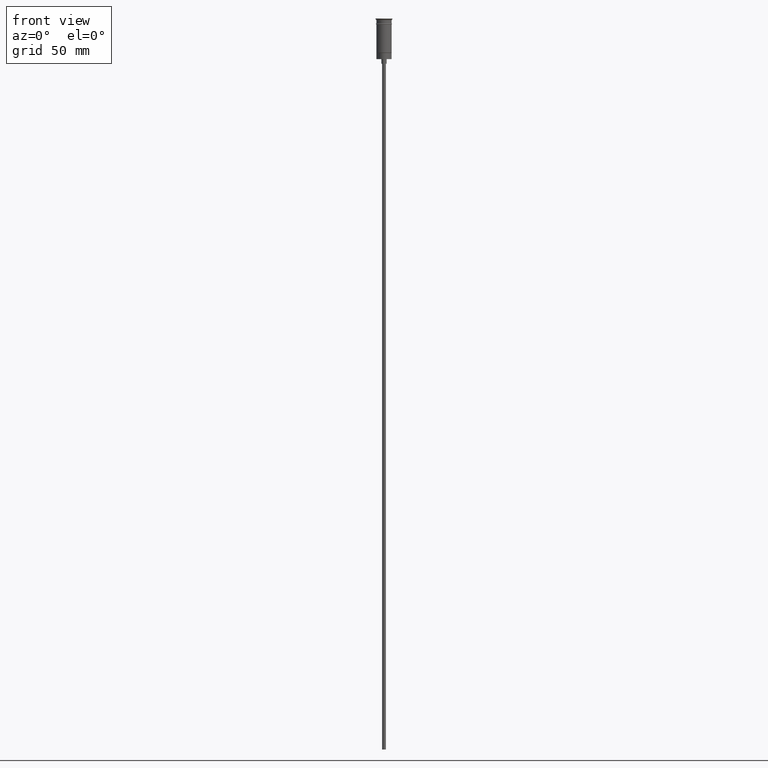
[diagram: clean part render]
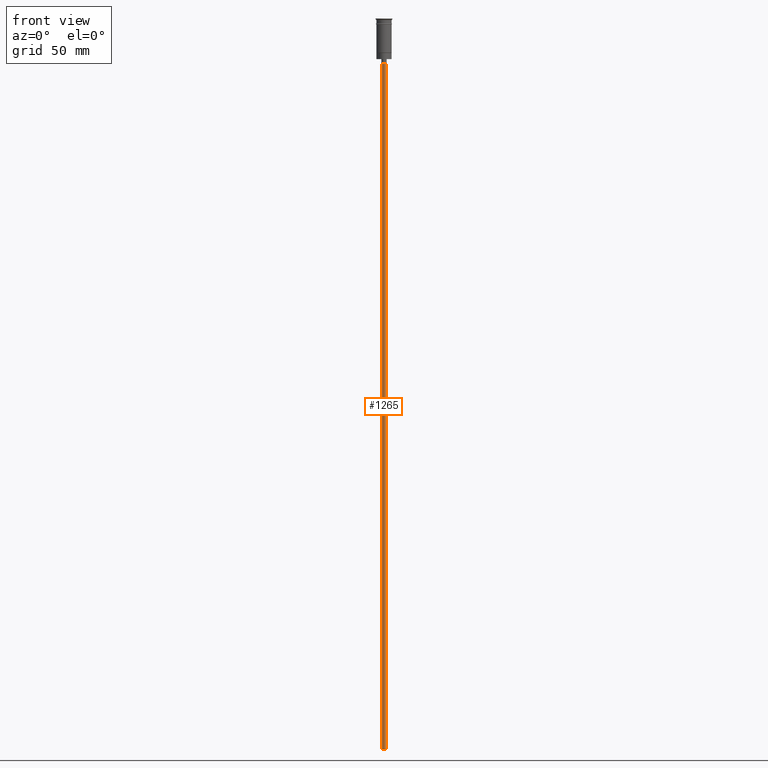
[diagram: same view with one face highlighted and labeled with its STEP entity id]
A machine part, front view. The second image highlights one B-rep face of the part: STEP entity #1265.
In plain terms, the highlighted cylindrical surface (edge-blend (fillet) strip) has radius 1.25 mm, axis along (-0, -0, 1).
Its self-contained STEP definition (entity closure, byte-faithful):
#26 = VECTOR ( 'NONE', #1151, 1000.000000000000000 ) ;
#63 = CARTESIAN_POINT ( 'NONE',  ( 1.250000000000000000, 0.000000000000000000, -476.5000000000000568 ) ) ;
#66 = CARTESIAN_POINT ( 'NONE',  ( 0.000000000000000000, 0.000000000000000000, -476.5000000000000568 ) ) ;
#154 = CARTESIAN_POINT ( 'NONE',  ( 1.250000000000000000, 0.000000000000000000, -476.5000000000000568 ) ) ;
#167 = EDGE_CURVE ( 'NONE', #1105, #891, #577, .T. ) ;
#172 = DIRECTION ( 'NONE',  ( 1.000000000000000000, 0.000000000000000000, 0.000000000000000000 ) ) ;
#287 = CIRCLE ( 'NONE', #809, 1.250000000000000000 ) ;
#348 = CARTESIAN_POINT ( 'NONE',  ( 0.000000000000000000, 0.000000000000000000, -29.50000000000000000 ) ) ;
#371 = ORIENTED_EDGE ( 'NONE', *, *, #401, .T. ) ;
#401 = EDGE_CURVE ( 'NONE', #866, #1212, #1240, .T. ) ;
#442 = AXIS2_PLACEMENT_3D ( 'NONE', #66, #696, #562 ) ;
#466 = CIRCLE ( 'NONE', #442, 1.250000000000000000 ) ;
#562 = DIRECTION ( 'NONE',  ( -1.000000000000000000, 0.000000000000000000, 0.000000000000000000 ) ) ;
#571 = EDGE_CURVE ( 'NONE', #866, #1105, #466, .T. ) ;
#577 = LINE ( 'NONE', #1316, #1601 ) ;
#659 = CARTESIAN_POINT ( 'NONE',  ( 0.000000000000000000, 0.000000000000000000, -476.5000000000000568 ) ) ;
#696 = DIRECTION ( 'NONE',  ( 0.000000000000000000, 0.000000000000000000, -1.000000000000000000 ) ) ;
#718 = EDGE_CURVE ( 'NONE', #1212, #891, #287, .T. ) ;
#746 = ORIENTED_EDGE ( 'NONE', *, *, #571, .F. ) ;
#771 = FACE_OUTER_BOUND ( 'NONE', #1354, .T. ) ;
#789 = CYLINDRICAL_SURFACE ( 'NONE', #912, 1.250000000000000000 ) ;
#809 = AXIS2_PLACEMENT_3D ( 'NONE', #348, #1320, #844 ) ;
#844 = DIRECTION ( 'NONE',  ( -1.000000000000000000, 0.000000000000000000, 0.000000000000000000 ) ) ;
#866 = VERTEX_POINT ( 'NONE', #63 ) ;
#891 = VERTEX_POINT ( 'NONE', #1419 ) ;
#912 = AXIS2_PLACEMENT_3D ( 'NONE', #659, #1017, #172 ) ;
#997 = CARTESIAN_POINT ( 'NONE',  ( 1.250000000000000000, 0.000000000000000000, -29.50000000000000000 ) ) ;
#1017 = DIRECTION ( 'NONE',  ( -0.000000000000000000, -0.000000000000000000, 1.000000000000000000 ) ) ;
#1105 = VERTEX_POINT ( 'NONE', #1340 ) ;
#1137 = ORIENTED_EDGE ( 'NONE', *, *, #718, .T. ) ;
#1151 = DIRECTION ( 'NONE',  ( -0.000000000000000000, -0.000000000000000000, 1.000000000000000000 ) ) ;
#1206 = ORIENTED_EDGE ( 'NONE', *, *, #167, .F. ) ;
#1212 = VERTEX_POINT ( 'NONE', #997 ) ;
#1240 = LINE ( 'NONE', #154, #26 ) ;
#1265 = ADVANCED_FACE ( 'NONE', ( #771 ), #789, .T. ) ;
#1290 = DIRECTION ( 'NONE',  ( -0.000000000000000000, -0.000000000000000000, 1.000000000000000000 ) ) ;
#1316 = CARTESIAN_POINT ( 'NONE',  ( -1.250000000000000000, 1.530808498934191571E-16, -476.5000000000000568 ) ) ;
#1320 = DIRECTION ( 'NONE',  ( 0.000000000000000000, 0.000000000000000000, -1.000000000000000000 ) ) ;
#1340 = CARTESIAN_POINT ( 'NONE',  ( -1.250000000000000000, 1.530808498934191571E-16, -476.5000000000000568 ) ) ;
#1354 = EDGE_LOOP ( 'NONE', ( #1206, #746, #371, #1137 ) ) ;
#1419 = CARTESIAN_POINT ( 'NONE',  ( -1.250000000000000000, 1.530808498934191571E-16, -29.50000000000000000 ) ) ;
#1601 = VECTOR ( 'NONE', #1290, 1000.000000000000000 ) ;